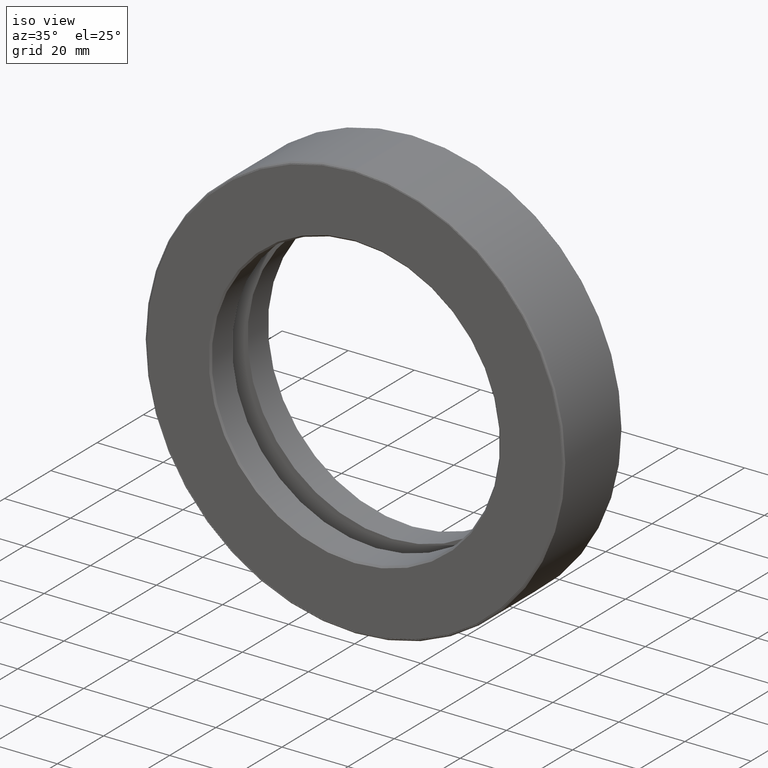
[diagram: clean part render]
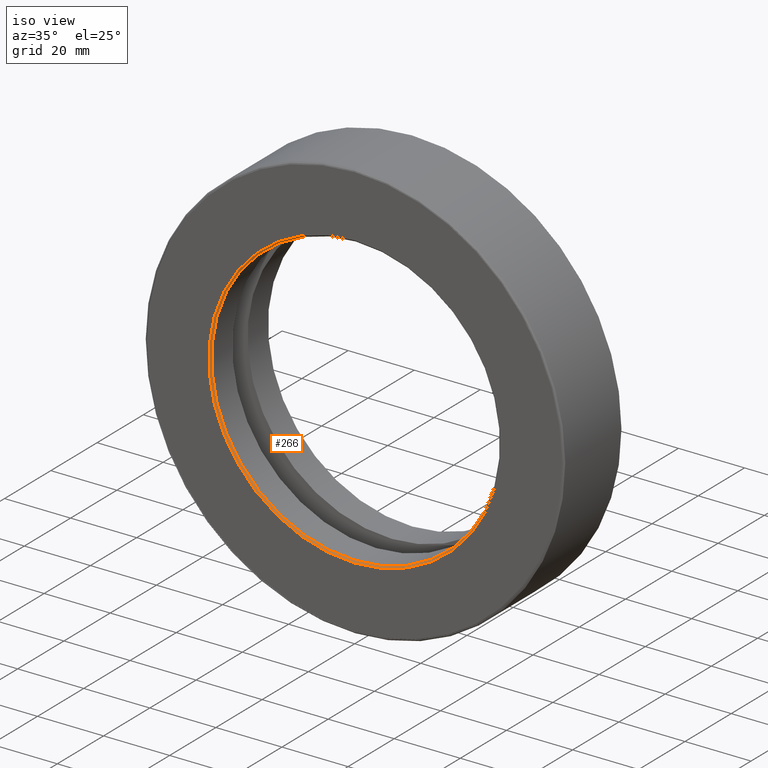
[diagram: same view with one face highlighted and labeled with its STEP entity id]
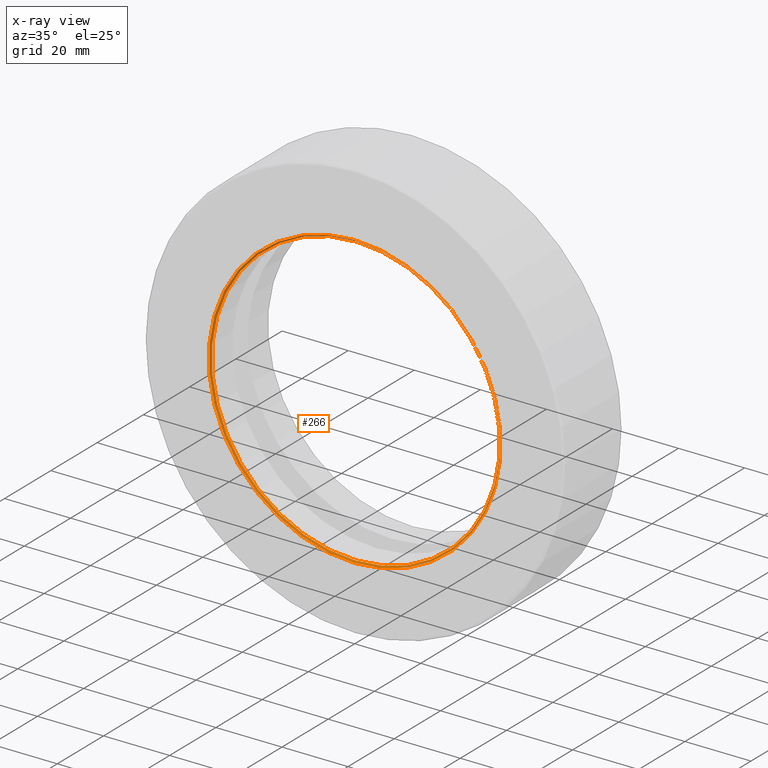
[diagram: x-ray of the same camera — body ghosted, the highlighted face saturated]
A machine part, iso view. The second image highlights one B-rep face of the part: STEP entity #266.
The next image is the same camera in x-ray: the body ghosted, the highlighted face saturated — about 0% of this face is hidden behind the body in this view.
In plain terms, the highlighted conical surface has half-angle 45 deg.
Its self-contained STEP definition (entity closure, byte-faithful):
#29 = CARTESIAN_POINT ( 'NONE',  ( 0.0000000000000000000, 2.731847993664263200E-016, 0.0000000000000000000 ) ) ;
#97 = EDGE_LOOP ( 'NONE', ( #526 ) ) ;
#101 = VERTEX_POINT ( 'NONE', #444 ) ;
#114 = AXIS2_PLACEMENT_3D ( 'NONE', #335, #197, #283 ) ;
#115 = DIRECTION ( 'NONE',  ( 0.0000000000000000000, 0.0000000000000000000, 1.000000000000000000 ) ) ;
#151 = EDGE_LOOP ( 'NONE', ( #411 ) ) ;
#155 = CIRCLE ( 'NONE', #592, 1.738750000000000500 ) ;
#160 = DIRECTION ( 'NONE',  ( 0.0000000000000000000, 0.0000000000000000000, 1.000000000000000000 ) ) ;
#166 = VERTEX_POINT ( 'NONE', #397 ) ;
#197 = DIRECTION ( 'NONE',  ( 0.0000000000000000000, -1.000000000000000000, 0.0000000000000000000 ) ) ;
#206 = CARTESIAN_POINT ( 'NONE',  ( 0.0000000000000000000, 0.02000000000000019800, 0.0000000000000000000 ) ) ;
#208 = AXIS2_PLACEMENT_3D ( 'NONE', #206, #241, #160 ) ;
#216 = FACE_BOUND ( 'NONE', #97, .T. ) ;
#241 = DIRECTION ( 'NONE',  ( -0.0000000000000000000, 1.000000000000000000, -0.0000000000000000000 ) ) ;
#266 = ADVANCED_FACE ( 'NONE', ( #508, #216 ), #269, .F. ) ;
#269 = CONICAL_SURFACE ( 'NONE', #114, 1.718750000000000400, 0.7853981633974517200 ) ;
#283 = DIRECTION ( 'NONE',  ( 0.0000000000000000000, 0.0000000000000000000, -1.000000000000000000 ) ) ;
#290 = EDGE_CURVE ( 'NONE', #166, #166, #155, .T. ) ;
#292 = CIRCLE ( 'NONE', #208, 1.718750000000000400 ) ;
#303 = EDGE_CURVE ( 'NONE', #101, #101, #292, .T. ) ;
#335 = CARTESIAN_POINT ( 'NONE',  ( 0.0000000000000000000, 0.02000000000000019800, 0.0000000000000000000 ) ) ;
#382 = DIRECTION ( 'NONE',  ( -0.0000000000000000000, 1.000000000000000000, -0.0000000000000000000 ) ) ;
#397 = CARTESIAN_POINT ( 'NONE',  ( 0.0000000000000000000, 2.731847993664263200E-016, 1.738750000000000500 ) ) ;
#411 = ORIENTED_EDGE ( 'NONE', *, *, #290, .F. ) ;
#444 = CARTESIAN_POINT ( 'NONE',  ( 0.0000000000000000000, 0.02000000000000019800, 1.718750000000000400 ) ) ;
#508 = FACE_OUTER_BOUND ( 'NONE', #151, .T. ) ;
#526 = ORIENTED_EDGE ( 'NONE', *, *, #303, .T. ) ;
#592 = AXIS2_PLACEMENT_3D ( 'NONE', #29, #382, #115 ) ;